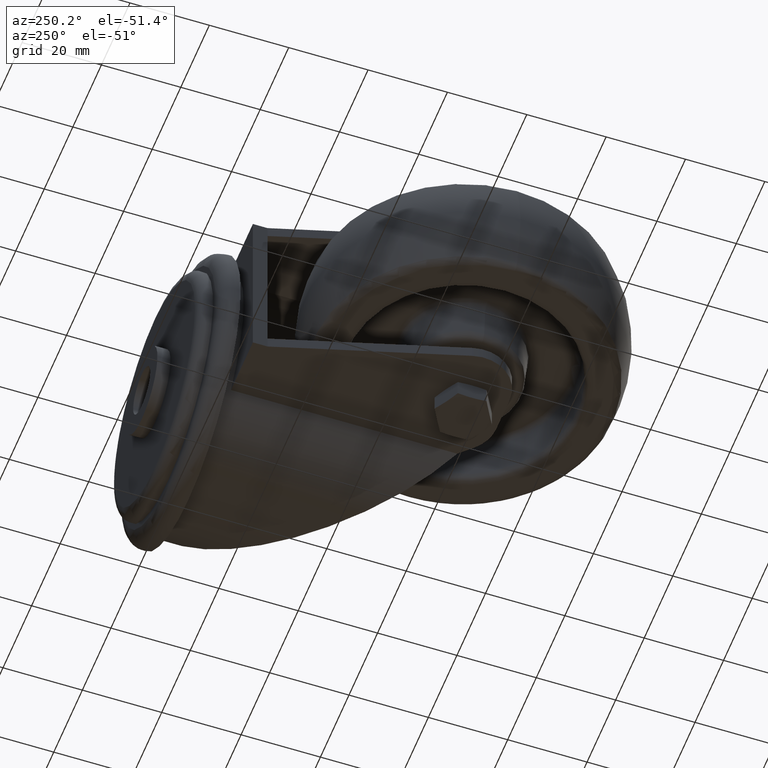
[diagram: clean part render]
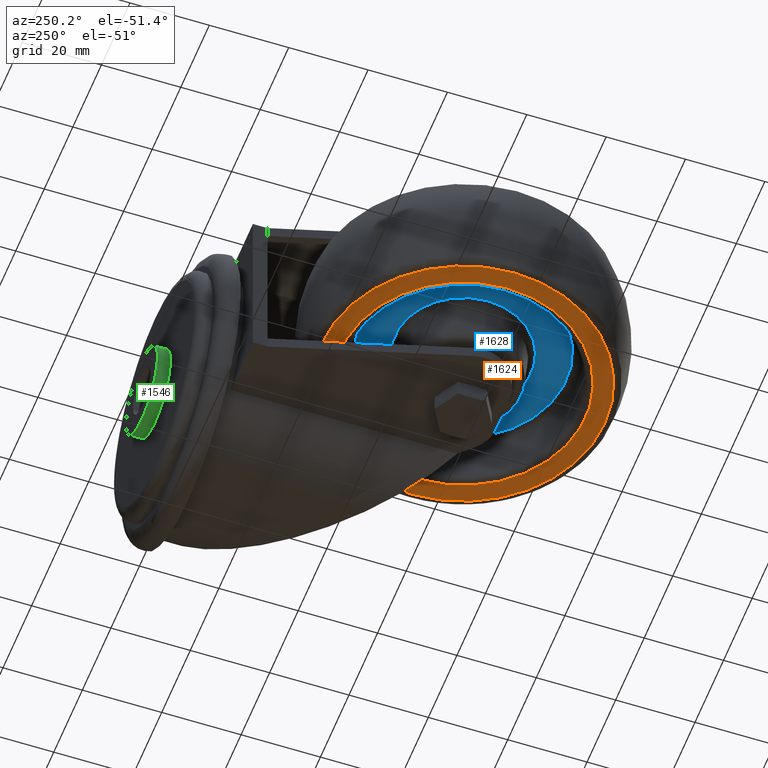
[diagram: same view with three faces highlighted in distinct colors, each labeled with its STEP entity id]
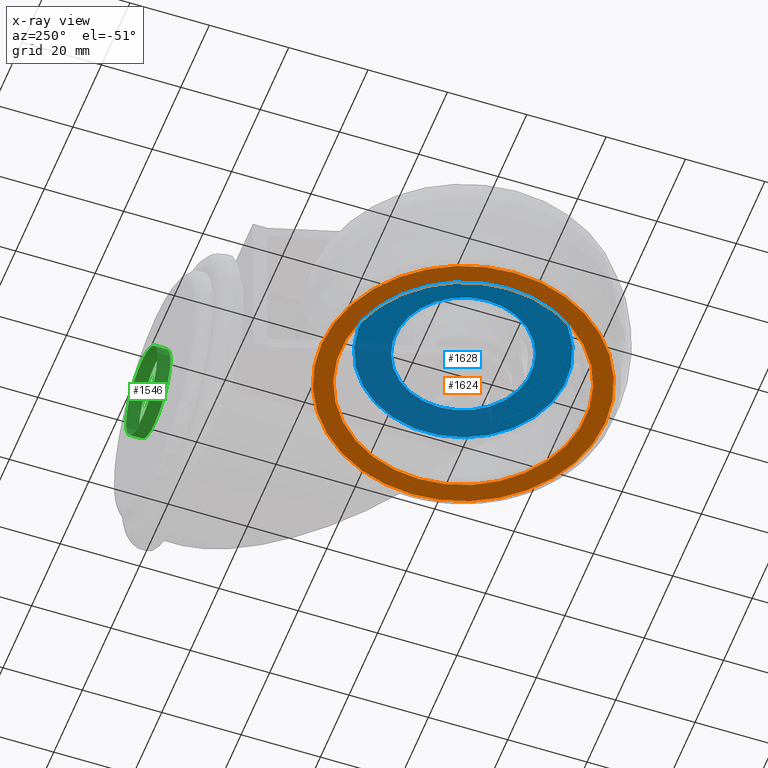
[diagram: x-ray of the same camera — body ghosted, the three highlighted faces saturated]
A machine part, auxiliary view with three faces highlighted in distinct colors.
The next image is the same camera in x-ray (body ghosted, the three faces saturated) — at least one of them is partly hidden behind the body in this view.
Their STEP definitions:

[orange] entity #1624 — the highlighted planar face has unit normal (0, 0, -1).
#167=FACE_BOUND('',#430,.T.);
#209=PLANE('',#1934);
#305=FACE_OUTER_BOUND('',#429,.T.);
#429=EDGE_LOOP('',(#1462));
#430=EDGE_LOOP('',(#1463));
#529=CIRCLE('',#1935,35.7071421427142);
#530=CIRCLE('',#1936,30.8326623480348);
#816=VERTEX_POINT('',#3010);
#817=VERTEX_POINT('',#3012);
#1033=EDGE_CURVE('',#816,#816,#529,.T.);
#1034=EDGE_CURVE('',#817,#817,#530,.T.);
#1462=ORIENTED_EDGE('',*,*,#1033,.F.);
#1463=ORIENTED_EDGE('',*,*,#1034,.T.);
#1624=ADVANCED_FACE('',(#305,#167),#209,.T.);
#1934=AXIS2_PLACEMENT_3D('',#3009,#2412,#2413);
#1935=AXIS2_PLACEMENT_3D('',#3011,#2414,#2415);
#1936=AXIS2_PLACEMENT_3D('',#3013,#2416,#2417);
#2412=DIRECTION('center_axis',(0.,0.,-1.));
#2413=DIRECTION('ref_axis',(-1.,0.,0.));
#2414=DIRECTION('center_axis',(0.,0.,1.));
#2415=DIRECTION('ref_axis',(1.,0.,0.));
#2416=DIRECTION('center_axis',(0.,0.,1.));
#2417=DIRECTION('ref_axis',(1.,0.,0.));
#3009=CARTESIAN_POINT('Origin',(34.,0.,-15.));
#3010=CARTESIAN_POINT('',(-35.7071421427142,-4.37286373317745E-15,-15.));
#3011=CARTESIAN_POINT('Origin',(0.,0.,-15.));
#3012=CARTESIAN_POINT('',(-30.8326623480348,-3.77591212537119E-15,-15.));
#3013=CARTESIAN_POINT('Origin',(0.,0.,-15.));

[blue] entity #1628 — the highlighted conical surface has half-angle 85 deg.
#101=CONICAL_SURFACE('',#1947,25.9407881563672,1.48352986419518);
#309=FACE_OUTER_BOUND('',#434,.T.);
#434=EDGE_LOOP('',(#1480,#1481,#1482,#1483));
#537=CIRCLE('',#1946,25.9407881563672);
#538=CIRCLE('',#1948,17.1432501746245);
#620=LINE('',#3032,#688);
#688=VECTOR('',#2441,25.9407881563672);
#822=VERTEX_POINT('',#3027);
#823=VERTEX_POINT('',#3031);
#1042=EDGE_CURVE('',#822,#822,#537,.T.);
#1043=EDGE_CURVE('',#822,#823,#620,.T.);
#1044=EDGE_CURVE('',#823,#823,#538,.T.);
#1480=ORIENTED_EDGE('',*,*,#1042,.F.);
#1481=ORIENTED_EDGE('',*,*,#1043,.T.);
#1482=ORIENTED_EDGE('',*,*,#1044,.T.);
#1483=ORIENTED_EDGE('',*,*,#1043,.F.);
#1628=ADVANCED_FACE('',(#309),#101,.T.);
#1946=AXIS2_PLACEMENT_3D('',#3029,#2437,#2438);
#1947=AXIS2_PLACEMENT_3D('',#3030,#2439,#2440);
#1948=AXIS2_PLACEMENT_3D('',#3033,#2442,#2443);
#2437=DIRECTION('center_axis',(0.,0.,1.));
#2438=DIRECTION('ref_axis',(1.,0.,0.));
#2439=DIRECTION('center_axis',(0.,0.,1.));
#2440=DIRECTION('ref_axis',(1.,0.,0.));
#2441=DIRECTION('',(0.996194698091746,1.21998664834562E-16,-0.0871557427476584));
#2442=DIRECTION('center_axis',(0.,0.,1.));
#2443=DIRECTION('ref_axis',(1.,0.,0.));
#3027=CARTESIAN_POINT('',(-25.9407881563672,-3.17683031830547E-15,-2.98047511339031));
#3029=CARTESIAN_POINT('Origin',(0.,0.,-2.98047511339031));
#3030=CARTESIAN_POINT('Origin',(0.,0.,-2.98047511339031));
#3031=CARTESIAN_POINT('',(-17.1432501746245,-2.09944264533362E-15,-3.75015995373154));
#3032=CARTESIAN_POINT('',(-25.9407881563672,-3.17683031830547E-15,-2.98047511339031));
#3033=CARTESIAN_POINT('Origin',(0.,0.,-3.75015995373154));

[green] entity #1546 — the highlighted cylindrical surface (bore or boss wall) has radius 11 mm, axis along (0, -1, 0).
#227=FACE_OUTER_BOUND('',#336,.T.);
#336=EDGE_LOOP('',(#1141,#1142,#1143,#1144));
#458=CIRCLE('',#1783,11.);
#460=CIRCLE('',#1786,11.);
#587=LINE('',#2600,#655);
#655=VECTOR('',#2086,11.);
#727=VERTEX_POINT('',#2593);
#729=VERTEX_POINT('',#2598);
#882=EDGE_CURVE('',#727,#727,#458,.T.);
#884=EDGE_CURVE('',#729,#729,#460,.T.);
#885=EDGE_CURVE('',#729,#727,#587,.T.);
#1141=ORIENTED_EDGE('',*,*,#884,.F.);
#1142=ORIENTED_EDGE('',*,*,#885,.T.);
#1143=ORIENTED_EDGE('',*,*,#882,.T.);
#1144=ORIENTED_EDGE('',*,*,#885,.F.);
#1517=CYLINDRICAL_SURFACE('',#1785,11.);
#1546=ADVANCED_FACE('',(#227),#1517,.T.);
#1783=AXIS2_PLACEMENT_3D('',#2594,#2078,#2079);
#1785=AXIS2_PLACEMENT_3D('',#2597,#2082,#2083);
#1786=AXIS2_PLACEMENT_3D('',#2599,#2084,#2085);
#2078=DIRECTION('center_axis',(0.,-1.,0.));
#2079=DIRECTION('ref_axis',(0.,0.,-1.));
#2082=DIRECTION('center_axis',(0.,-1.,0.));
#2083=DIRECTION('ref_axis',(0.,0.,-1.));
#2084=DIRECTION('center_axis',(0.,-1.,0.));
#2085=DIRECTION('ref_axis',(0.,0.,-1.));
#2086=DIRECTION('',(0.,1.,0.));
#2593=CARTESIAN_POINT('',(39.,67.,11.));
#2594=CARTESIAN_POINT('Origin',(39.,67.,0.));
#2597=CARTESIAN_POINT('Origin',(39.,55.2,0.));
#2598=CARTESIAN_POINT('',(39.,63.7,11.));
#2599=CARTESIAN_POINT('Origin',(39.,63.7,0.));
#2600=CARTESIAN_POINT('',(39.,55.2,11.));